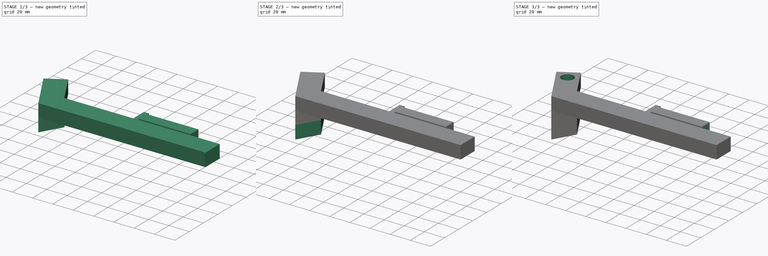
[diagram: build sequence overview — one tinted view per stage of 3, left to right]
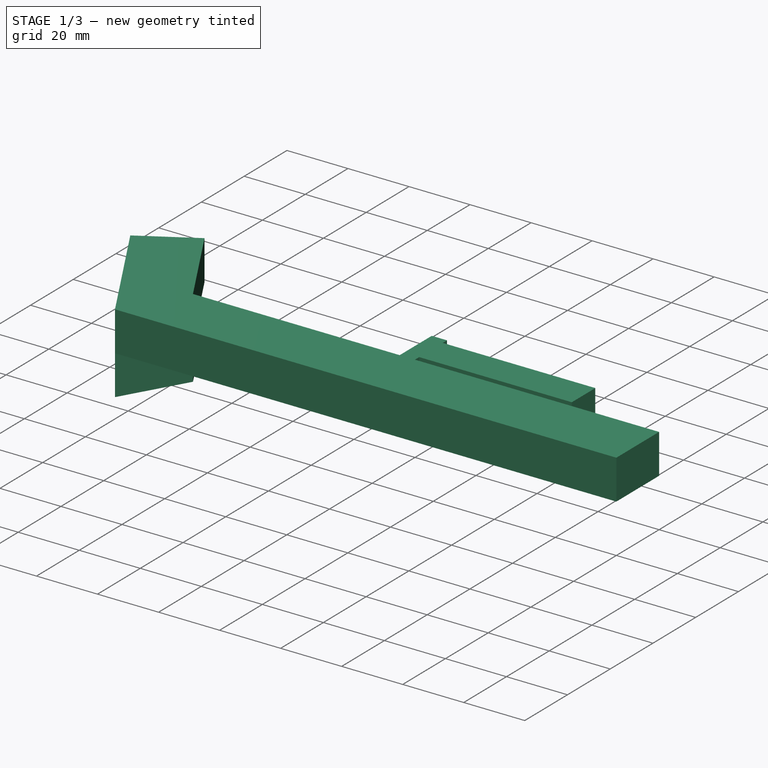
[diagram: stage 1 of 3 — iso view after this stage's code; geometry added in this stage tinted green]
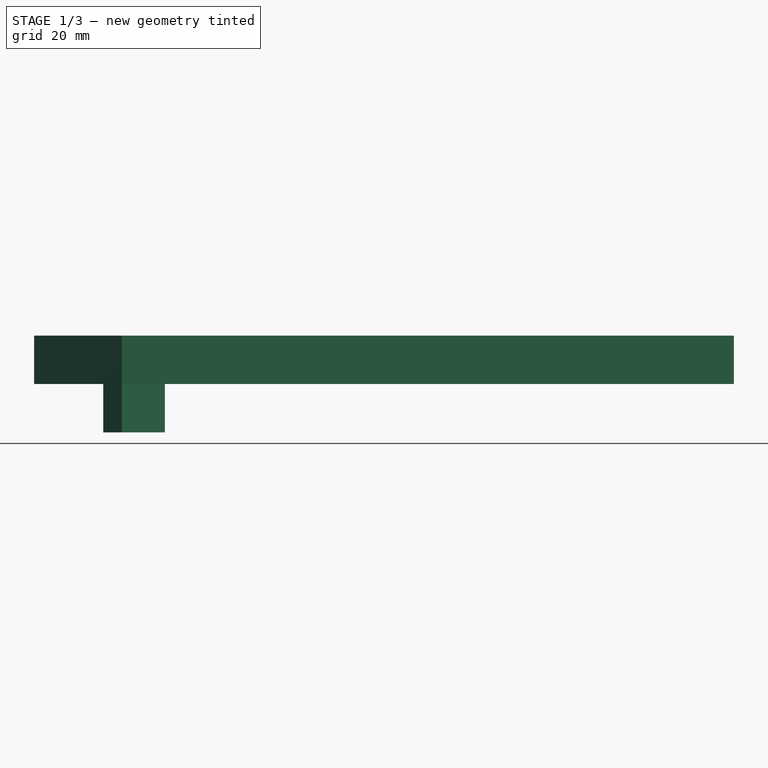
[diagram: stage 1 of 3 — front view after this stage's code; geometry added in this stage tinted green]
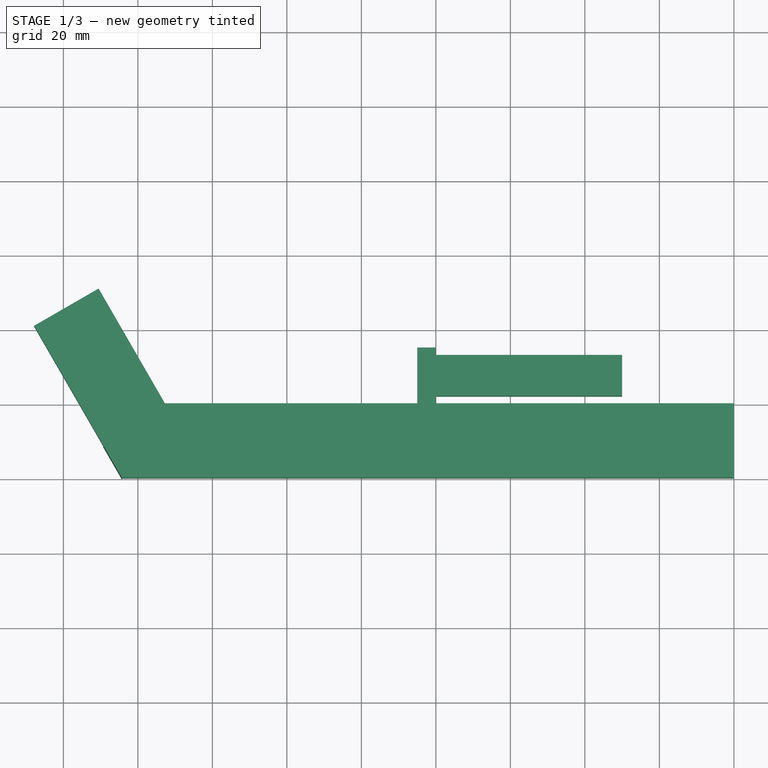
[diagram: stage 1 of 3 — top view after this stage's code; geometry added in this stage tinted green]
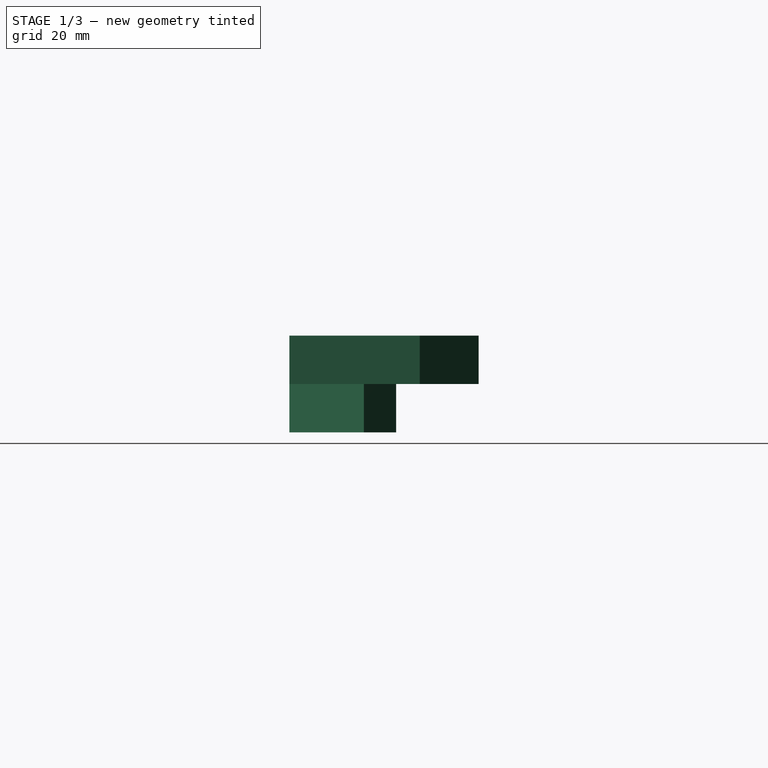
[diagram: stage 1 of 3 — right view after this stage's code; geometry added in this stage tinted green]
FCSTD DOCUMENT  (FreeCAD 0.20R29177 +426 (Git))
Label: left_handle
License: All rights reserved
LicenseURL: http://en.wikipedia.org/wiki/All_rights_reserved
objects: Sketcher::SketchObject×7, PartDesign::Pad×3, PartDesign::Pocket×2, PartDesign::SubShapeBinder×1, PartDesign::CoordinateSystem×1, PartDesign::Body×1
note: 20 computed .brp shape members not serialized (recipe doc carries the construction recipe); baked Part::Feature solids carry a one-line shape summary decoded from their .brp

FEATURE [Sketcher::SketchObject] Sketch  label="master"
  FullyConstrained = true
  MapMode = 5
  Support = -> [XY_Plane]
  sketch-geometry (15):
    g0: LineSegment StartX=-107.866 StartY=40.8218 StartZ=0 EndX=-84.297 EndY=0 EndZ=0
    g1: LineSegment StartX=-84.297 StartY=0 StartZ=0 EndX=80 EndY=0 EndZ=0
    g2: LineSegment StartX=80 StartY=0 StartZ=0 EndX=80 EndY=20 EndZ=0
    g3: LineSegment StartX=80 StartY=20 StartZ=0 EndX=0 EndY=20 EndZ=0
    g4: LineSegment StartX=-72.75 StartY=20 StartZ=0 EndX=-90.545 EndY=50.8218 EndZ=0
    g5: LineSegment StartX=-90.545 StartY=50.8218 StartZ=0 EndX=-107.866 EndY=40.8218 EndZ=0
    g6: GeomPoint X=0 Y=20 Z=0
    g7: LineSegment StartX=-5 StartY=20 StartZ=0 EndX=-5 EndY=35 EndZ=0
    g8: LineSegment StartX=-5 StartY=35 StartZ=0 EndX=0 EndY=35 EndZ=0
    g9: LineSegment StartX=0 StartY=35 StartZ=0 EndX=0 EndY=33 EndZ=0
    g10: LineSegment StartX=0 StartY=33 StartZ=0 EndX=50 EndY=33 EndZ=0
    g11: LineSegment StartX=50 StartY=33 StartZ=0 EndX=50 EndY=22 EndZ=0
    g12: LineSegment StartX=50 StartY=22 StartZ=0 EndX=0 EndY=22 EndZ=0
    g13: LineSegment StartX=0 StartY=22 StartZ=0 EndX=0 EndY=20 EndZ=0
    g14: LineSegment StartX=-5 StartY=20 StartZ=0 EndX=-72.75 EndY=20 EndZ=0
  constraints (44):
    c: PointOnObject(g0,g-1)
    c: Coincident(g0,g1)
    c: PointOnObject(g1,g-1)
    c: Coincident(g1,g2)
    c: Coincident(g2,g3)
    c: Horizontal(g3)
    c: Coincident(g14,g4)
    c: Coincident(g4,g5)
    c: Coincident(g5,g0)
    c: Distance(g5) = 20
    c: Distance(g4) = 35.59
    c: Angle(g3,g4) = 2.0944
    c: Parallel(g4,g0)
    c: Perpendicular(g4,g5)
    c: PointOnObject(g6,g3)
    c: PointOnObject(g6,g-2)
    c: DistanceX(g14,g6) = 72.75
    c: DistanceX(g6,g2) = 80
    c: Vertical(g1,g2)
    c: DistanceY(g2,g2) = 20
    c: Vertical(g7)
    c: Coincident(g7,g8)
    c: PointOnObject(g8,g-2)
    c: Horizontal(g8)
    c: Coincident(g8,g9)
    c: PointOnObject(g9,g-2)
    c: Coincident(g9,g10)
    c: Horizontal(g10)
    c: Coincident(g10,g11)
    c: Coincident(g11,g12)
    c: PointOnObject(g12,g-2)
    c: Horizontal(g12)
    c: Coincident(g12,g13)
    c: Coincident(g13,g6)
    c: PointOnObject(g3,g13)
    c: Coincident(g14,g7)
    c: DistanceY(g13,g13) = 2
    c: DistanceY(g9,g9) = 2
    c: Horizontal(g3,g7)
    c: DistanceY(g7,g7) = 15
    c: Horizontal(g4,g7)
    c: DistanceX(g8,g8) = 5
    c: Vertical(g10,g11)
    c: DistanceX(g10,g10) = 50
FEATURE [PartDesign::SubShapeBinder] Binder
  BindCopyOnChange = 0
  BindMode = 0
  ClaimChildren = false
  Context = -> Body [Binder.]
  Fuse = false
  MakeFace = true
  OffsetFill = false
  OffsetIntersection = false
  OffsetJoinType = 0
  OffsetOpenResult = false
  PartialLoad = false
  Relative = true
  Support = -> [Sketch]
  _Version = 2
FEATURE [Sketcher::SketchObject] Sketch001
  ExternalGeometry = -> [Binder]
  FullyConstrained = true
  MapMode = 5
  Support = -> [XY_Plane]
  sketch-geometry (14):
    g0: LineSegment StartX=-90.545 StartY=50.8218 StartZ=0 EndX=-72.75 EndY=20 EndZ=0
    g1: LineSegment StartX=-72.75 StartY=20 StartZ=0 EndX=-5 EndY=20 EndZ=0
    g2: LineSegment StartX=-5 StartY=20 StartZ=0 EndX=-5 EndY=35 EndZ=0
    g3: LineSegment StartX=-5 StartY=35 StartZ=0 EndX=0 EndY=35 EndZ=0
    g4: LineSegment StartX=0 StartY=35 StartZ=0 EndX=0 EndY=33 EndZ=0
    g5: LineSegment StartX=0 StartY=33 StartZ=0 EndX=50 EndY=33 EndZ=0
    g6: LineSegment StartX=50 StartY=33 StartZ=0 EndX=50 EndY=22 EndZ=0
    g7: LineSegment StartX=50 StartY=22 StartZ=0 EndX=0 EndY=22 EndZ=0
    g8: LineSegment StartX=0 StartY=22 StartZ=0 EndX=0 EndY=20 EndZ=0
    g9: LineSegment StartX=0 StartY=20 StartZ=0 EndX=80 EndY=20 EndZ=0
    g10: LineSegment StartX=80 StartY=20 StartZ=0 EndX=80 EndY=0 EndZ=0
    g11: LineSegment StartX=80 StartY=0 StartZ=0 EndX=-84.297 EndY=0 EndZ=0
    g12: LineSegment StartX=-84.297 StartY=0 StartZ=0 EndX=-107.866 EndY=40.8218 EndZ=0
    g13: LineSegment StartX=-107.866 StartY=40.8218 StartZ=0 EndX=-90.545 EndY=50.8218 EndZ=0
  constraints (28):
    c: Coincident(g-15,g0)
    c: Coincident(g0,g-14)
    c: Coincident(g0,g1)
    c: Coincident(g1,g-13)
    c: Coincident(g1,g2)
    c: Coincident(g2,g-12)
    c: Coincident(g2,g3)
    c: Coincident(g3,g-11)
    c: Coincident(g3,g4)
    c: Coincident(g4,g-9)
    c: Coincident(g4,g5)
    c: Coincident(g5,g-10)
    c: Coincident(g5,g6)
    c: Coincident(g6,g-10)
    c: Coincident(g6,g7)
    c: Coincident(g7,g-8)
    c: Coincident(g7,g8)
    c: Coincident(g8,g-8)
    c: Coincident(g8,g9)
    c: Coincident(g9,g-6)
    c: Coincident(g9,g10)
    c: Coincident(g10,g-5)
    c: Coincident(g10,g11)
    c: Coincident(g11,g-4)
    c: Coincident(g11,g12)
    c: Coincident(g12,g-15)
    c: Coincident(g12,g13)
    c: Coincident(g13,g0)
FEATURE [PartDesign::Pad] Pad
  Direction = (0,0,1)
  Length = 13
  Length2 = 10
  Profile = -> Sketch001
  ReferenceAxis = -> Sketch001 [N_Axis]
  Type = 0
FEATURE [Sketcher::SketchObject] Sketch002
  ExternalGeometry = -> [Pad]
  FullyConstrained = true
  MapMode = 5
  Placement = pos=(0,0,0) rot=(1,0,0;3.14159rad)
  Support = -> [Pad]
  sketch-geometry (4):
    g0: LineSegment StartX=-84.297 StartY=0 StartZ=0 EndX=-72.75 EndY=-20 EndZ=0
    g1: LineSegment StartX=-72.75 StartY=-20 StartZ=0 EndX=-77.75 EndY=-28.6603 EndZ=0
    g2: LineSegment StartX=-77.75 StartY=-28.6603 StartZ=0 EndX=-89.297 EndY=-8.66025 EndZ=0
    g3: LineSegment StartX=-89.297 StartY=-8.66025 StartZ=0 EndX=-84.297 EndY=0 EndZ=0
  constraints (10):
    c: Coincident(g-3,g0)
    c: Coincident(g0,g-5)
    c: Coincident(g0,g1)
    c: PointOnObject(g1,g-5)
    c: Coincident(g1,g2)
    c: PointOnObject(g2,g-3)
    c: Coincident(g2,g3)
    c: Coincident(g3,g0)
    c: Equal(g3,g1)
    c: Distance(g3) = 10
FEATURE [PartDesign::Pad] Pad001
  BaseFeature = -> Pad
  Direction = (0,0,-1)
  Length = 13
  Length2 = 10
  Profile = -> Sketch002
  ReferenceAxis = -> Sketch002 [N_Axis]
  Type = 0
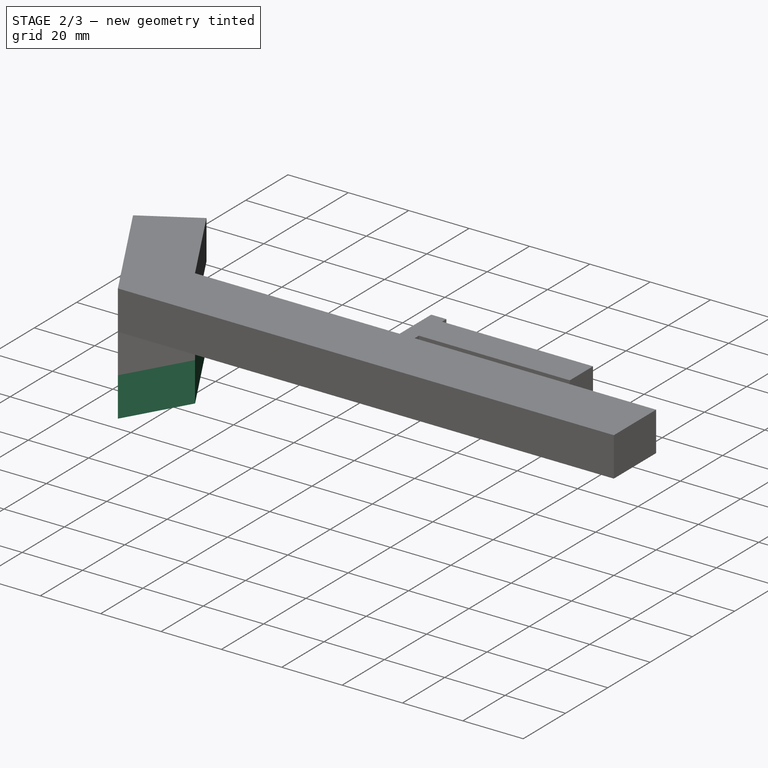
[diagram: stage 2 of 3 — iso view after this stage's code; geometry added in this stage tinted green]
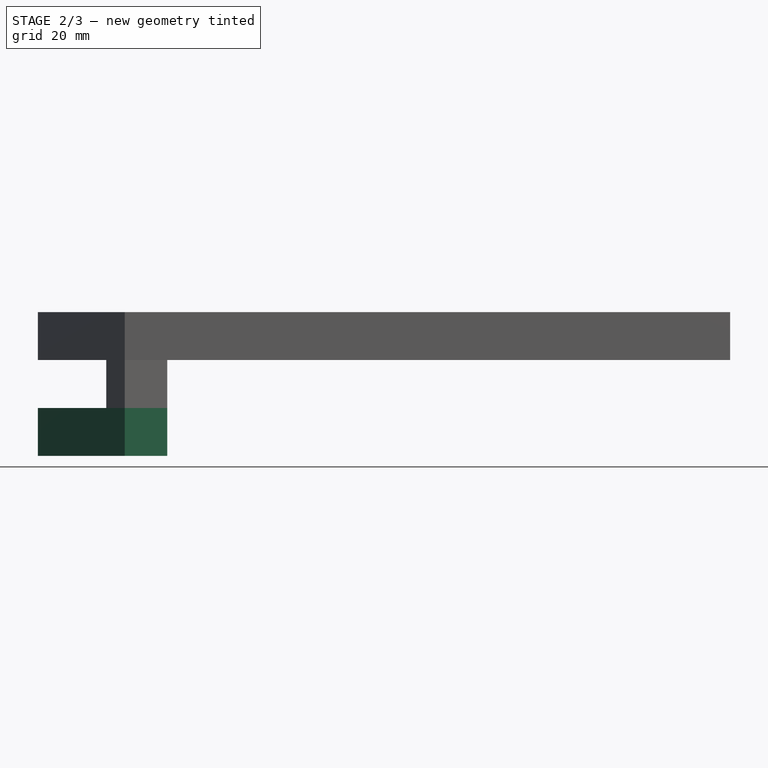
[diagram: stage 2 of 3 — front view after this stage's code; geometry added in this stage tinted green]
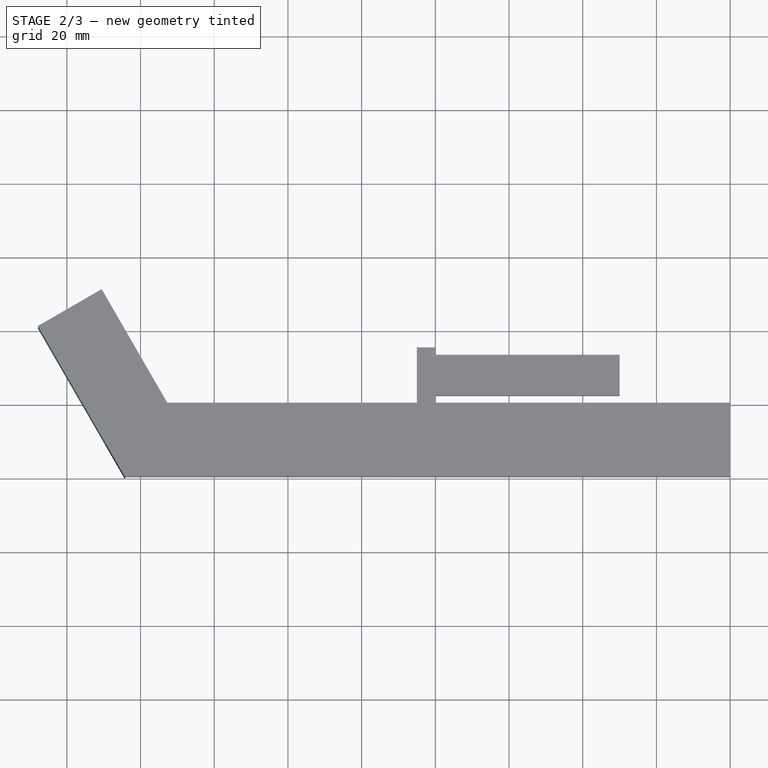
[diagram: stage 2 of 3 — top view after this stage's code; geometry added in this stage tinted green]
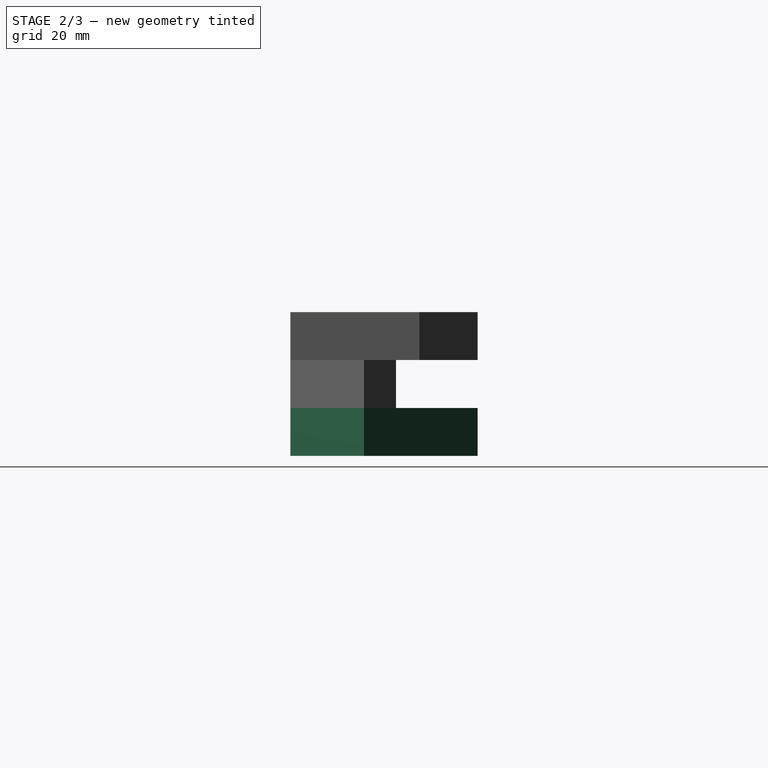
[diagram: stage 2 of 3 — right view after this stage's code; geometry added in this stage tinted green]
FEATURE [Sketcher::SketchObject] Sketch003
  ExternalGeometry = -> [Pad001]
  FullyConstrained = true
  MapMode = 5
  Placement = pos=(0,0,-13) rot=(1,0,0;3.14159rad)
  Support = -> [Pad001]
  sketch-geometry (4):
    g0: LineSegment StartX=-84.297 StartY=0 StartZ=0 EndX=-107.866 EndY=-40.8218 EndZ=0
    g1: LineSegment StartX=-107.866 StartY=-40.8218 StartZ=0 EndX=-90.545 EndY=-50.8218 EndZ=0
    g2: LineSegment StartX=-90.545 StartY=-50.8218 StartZ=0 EndX=-72.75 EndY=-20 EndZ=0
    g3: LineSegment StartX=-72.75 StartY=-20 StartZ=0 EndX=-84.297 EndY=0 EndZ=0
  constraints (8):
    c: Coincident(g-7,g0)
    c: Coincident(g0,g-5)
    c: Coincident(g0,g1)
    c: Coincident(g1,g-5)
    c: Coincident(g1,g2)
    c: Coincident(g2,g-6)
    c: Coincident(g2,g3)
    c: Coincident(g3,g0)
FEATURE [PartDesign::Pad] Pad002
  BaseFeature = -> Pad001
  Direction = (0,0,-1)
  Length = 13
  Length2 = 10
  Profile = -> Sketch003
  ReferenceAxis = -> Sketch003 [N_Axis]
  Type = 0
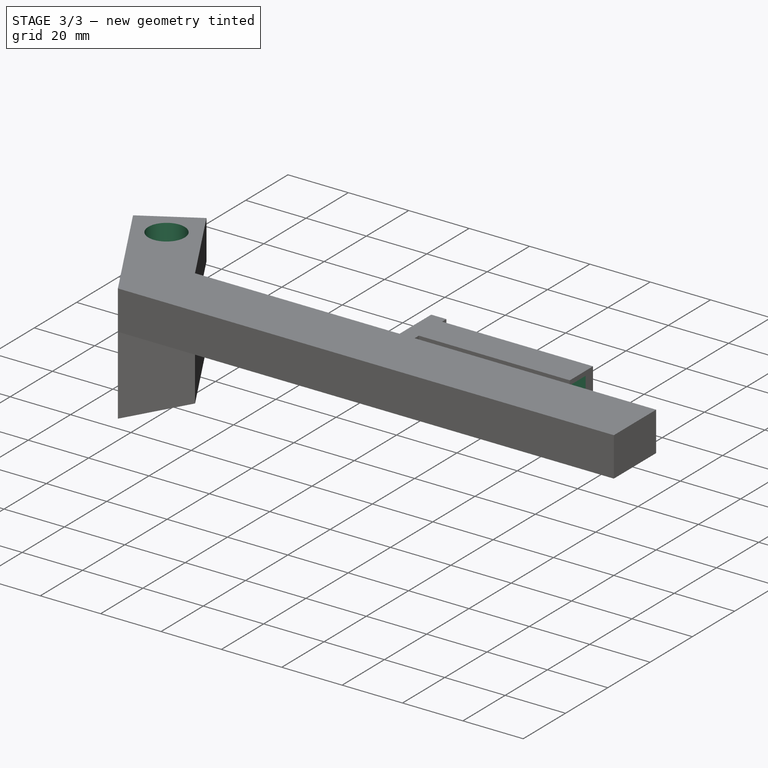
[diagram: stage 3 of 3 — iso view after this stage's code; geometry added in this stage tinted green]
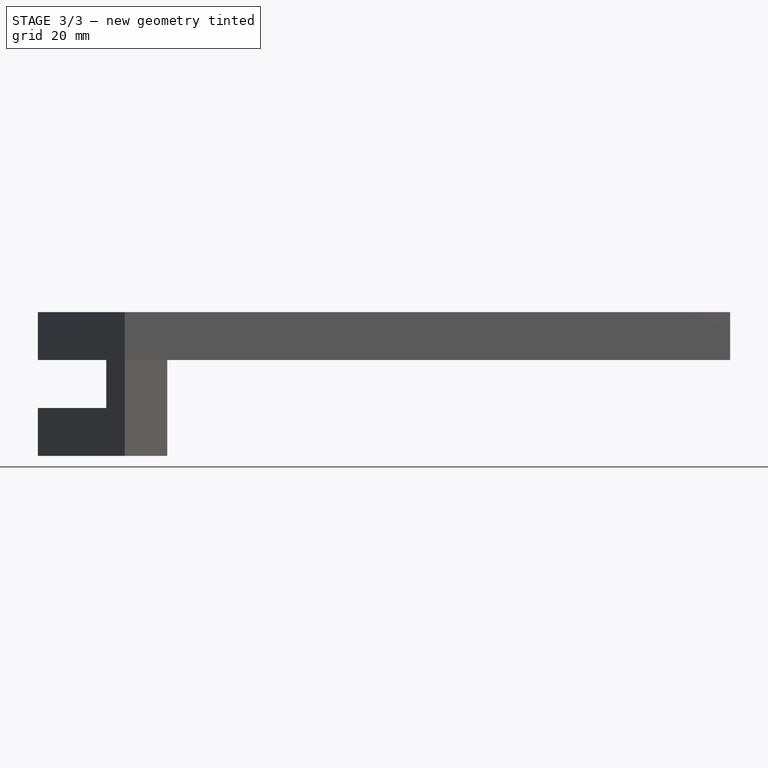
[diagram: stage 3 of 3 — front view after this stage's code; geometry added in this stage tinted green]
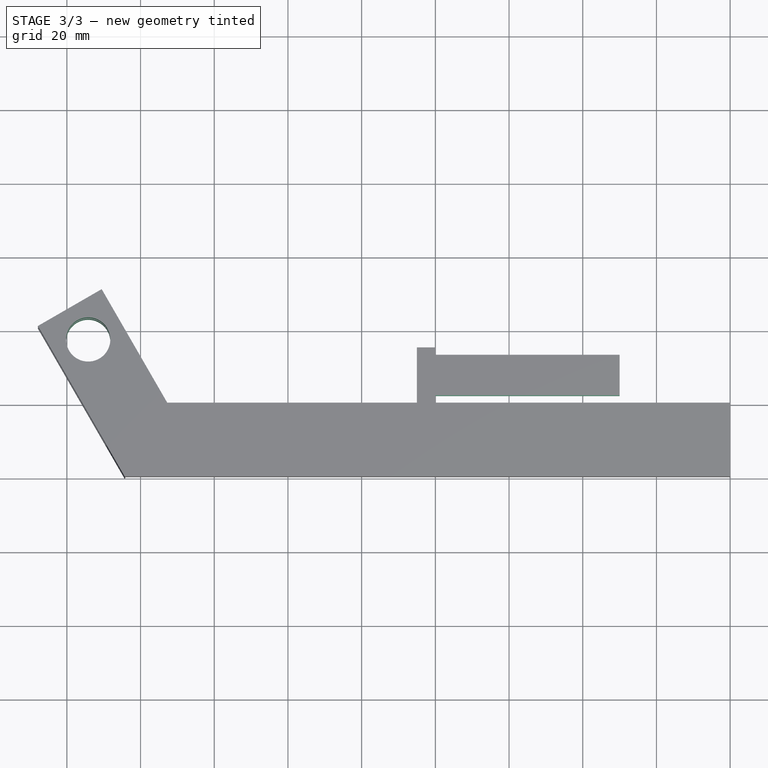
[diagram: stage 3 of 3 — top view after this stage's code; geometry added in this stage tinted green]
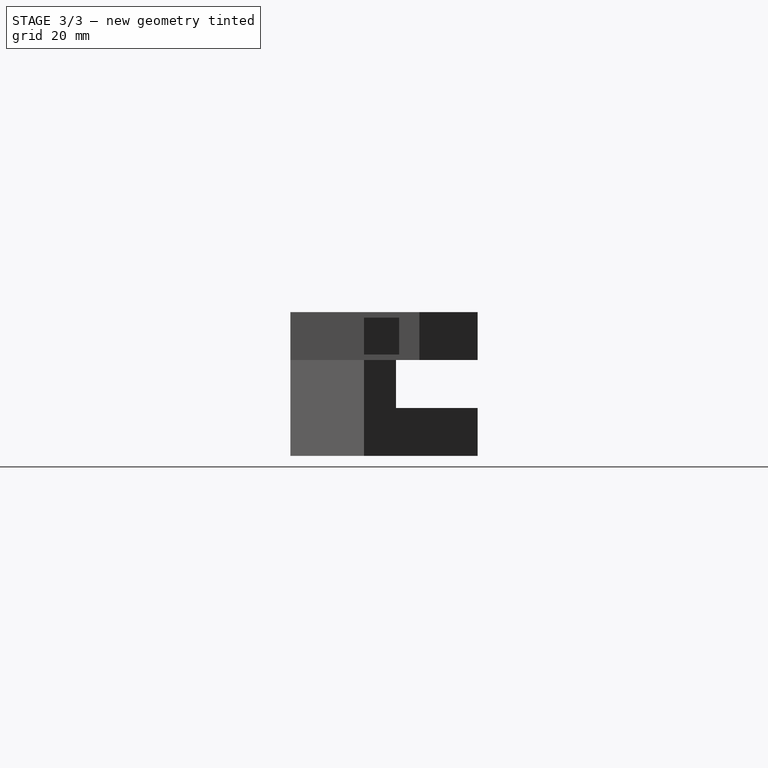
[diagram: stage 3 of 3 — right view after this stage's code; geometry added in this stage tinted green]
FEATURE [Sketcher::SketchObject] Sketch004
  ExternalGeometry = -> [Pad002]
  FullyConstrained = true
  MapMode = 5
  Placement = pos=(0,0,-26) rot=(1,0,0;3.14159rad)
  Support = -> [Pad002]
  sketch-geometry (5):
    g0: LineSegment StartX=-107.866 StartY=-40.8218 StartZ=0 EndX=-97.8655 EndY=-23.5013 EndZ=0
    g1: LineSegment StartX=-97.8655 StartY=-23.5013 StartZ=0 EndX=-80.545 EndY=-33.5013 EndZ=0
    g2: LineSegment StartX=-80.545 StartY=-33.5013 StartZ=0 EndX=-90.545 EndY=-50.8218 EndZ=0
    g3: LineSegment StartX=-90.545 StartY=-50.8218 StartZ=0 EndX=-107.866 EndY=-40.8218 EndZ=0
    g4: Circle CenterX=-94.2053 CenterY=-37.1616 CenterZ=0 NormalX=0 NormalY=0 NormalZ=1 AngleXU=0 Radius=6
  constraints (12):
    c: Coincident(g-4,g0)
    c: PointOnObject(g0,g-3)
    c: Coincident(g0,g1)
    c: PointOnObject(g1,g-5)
    c: Coincident(g1,g2)
    c: Coincident(g2,g-5)
    c: Coincident(g2,g3)
    c: Coincident(g3,g0)
    c: Parallel(g3,g1)
    c: Equal(g2,g3)
    c: Radius(g4) = 6
    c: Symmetric(g1,g0,g4)
FEATURE [PartDesign::Pocket] Pocket
  BaseFeature = -> Pad002
  Direction = (0,0,1)
  Length = 30
  Length2 = 5
  Profile = -> Sketch004
  ReferenceAxis = -> Sketch004 [N_Axis]
  Type = 1
FEATURE [Sketcher::SketchObject] Sketch005
  FullyConstrained = true
  MapMode = 5
  Placement = pos=(0,0,0) rot=(1,0,0;3.14159rad)
  Support = -> [Pocket]
FEATURE [Sketcher::SketchObject] Sketch006
  ExternalGeometry = -> [Pocket]
  FullyConstrained = true
  MapMode = 5
  Placement = pos=(50,0,0) rot=(0.57735,0.57735,0.57735;2.0944rad)
  Support = -> [Pocket]
  sketch-geometry (5):
    g0: LineSegment StartX=12.5 StartY=11.5 StartZ=0 EndX=12.5 EndY=1.5 EndZ=0
    g1: LineSegment StartX=12.5 StartY=1.5 StartZ=0 EndX=29.5 EndY=1.5 EndZ=0
    g2: LineSegment StartX=29.5 StartY=1.5 StartZ=0 EndX=29.5 EndY=11.5 EndZ=0
    g3: LineSegment StartX=29.5 StartY=11.5 StartZ=0 EndX=12.5 EndY=11.5 EndZ=0
    g4: GeomPoint X=21 Y=6.5 Z=0
  constraints (12):
    c: Coincident(g0,g1)
    c: Coincident(g1,g2)
    c: Coincident(g2,g3)
    c: Coincident(g3,g0)
    c: Horizontal(g1)
    c: Horizontal(g3)
    c: Vertical(g0)
    c: Vertical(g2)
    c: Symmetric(g1,g0,g4)
    c: Symmetric(g-4,g-6,g4)
    c: DistanceX(g3,g3) = 17
    c: DistanceY(g2,g2) = 10
FEATURE [PartDesign::Pocket] Pocket001
  BaseFeature = -> Pocket
  Direction = (-1,0,0)
  Length = 60
  Length2 = 5
  Profile = -> Sketch006
  ReferenceAxis = -> Sketch006 [N_Axis]
  Type = 0
FEATURE [PartDesign::CoordinateSystem] LCS_1
  AttacherType = Attacher::AttachEngine3D
  MapMode = 7
  Placement = pos=(0,22,1.5) rot=(0.57735,-0.57735,-0.57735;2.0944rad)
  Support = -> [Pocket001]
FEATURE [PartDesign::Body] Body
  Group = -> [Binder,Sketch001,Pad,Sketch002,Pad001,Sketch003,Pad002,Sketch004,Pocket,Sketch005,Sketch006,Pocket001,LCS_1]
  Origin = -> Origin
  Tip = -> Pocket001
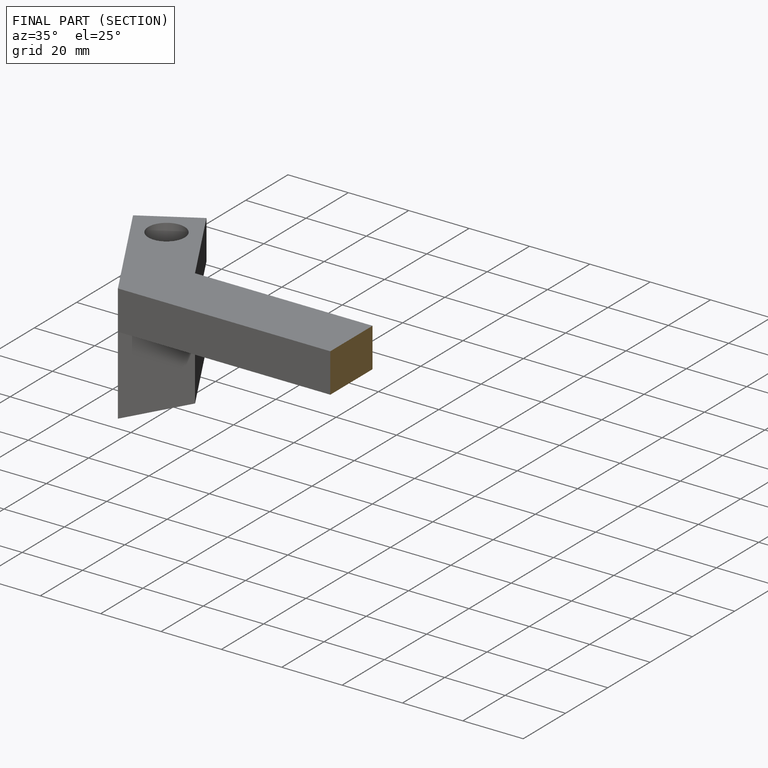
[diagram: finished part — half-section view (interior)]
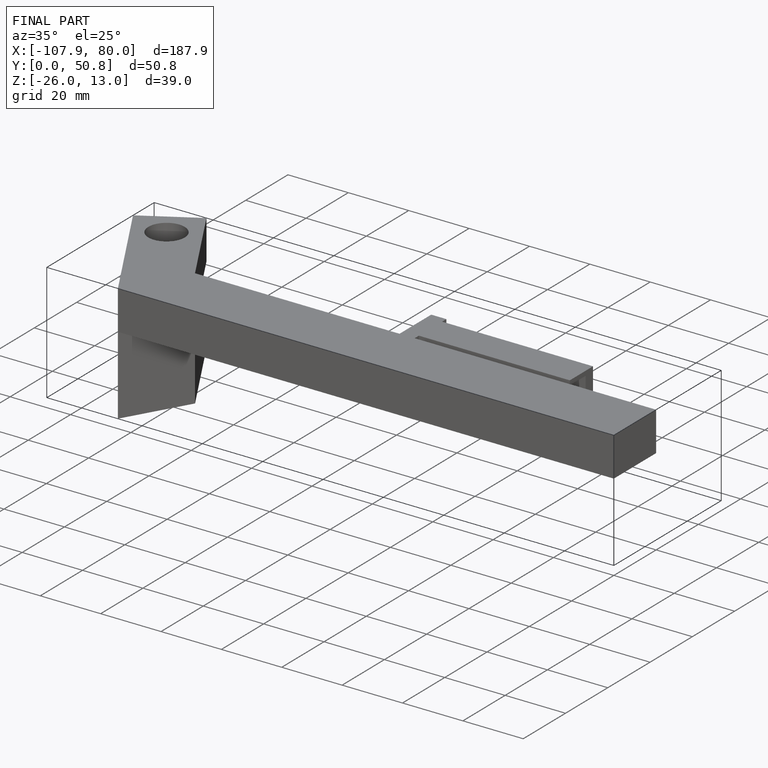
[diagram: finished part — iso view with bounding-box wireframe]
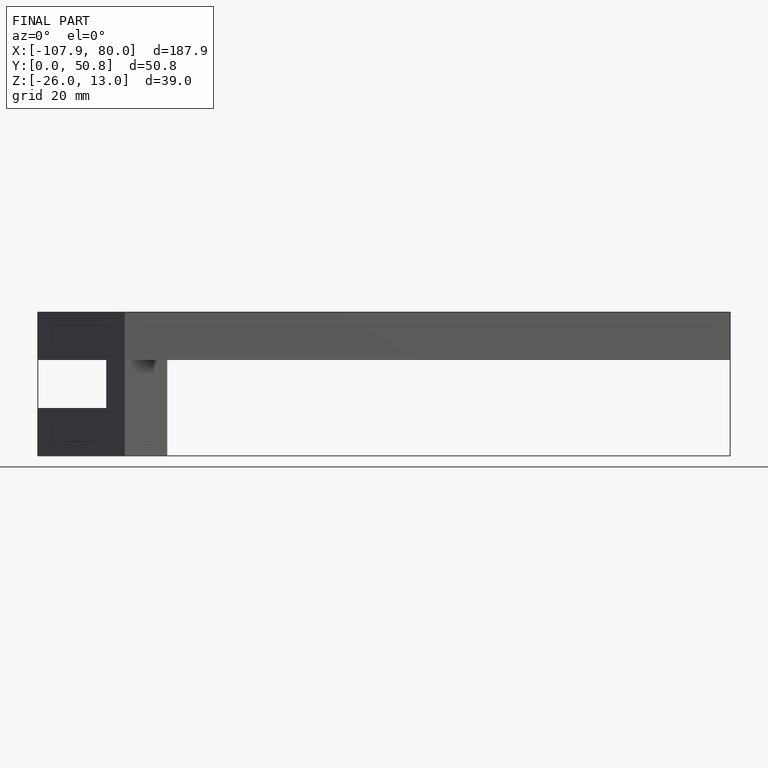
[diagram: finished part — front view with bounding-box wireframe]
